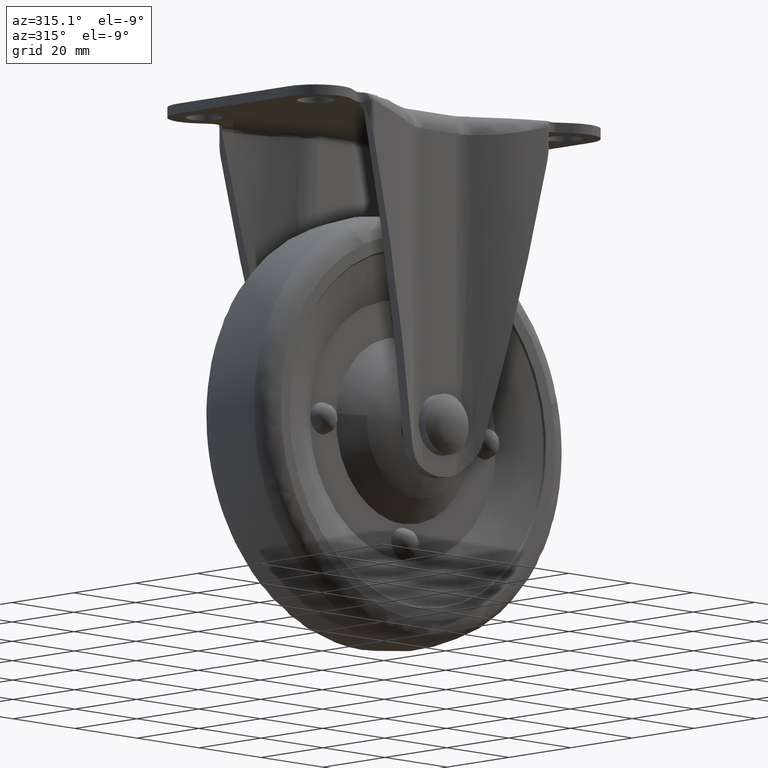
[diagram: clean part render]
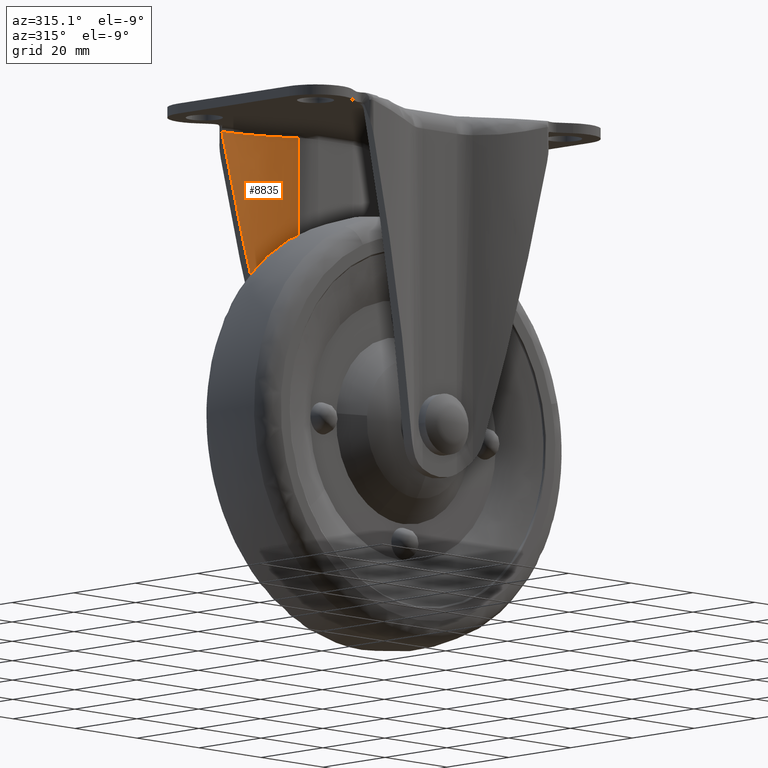
[diagram: same view with one face highlighted and labeled with its STEP entity id]
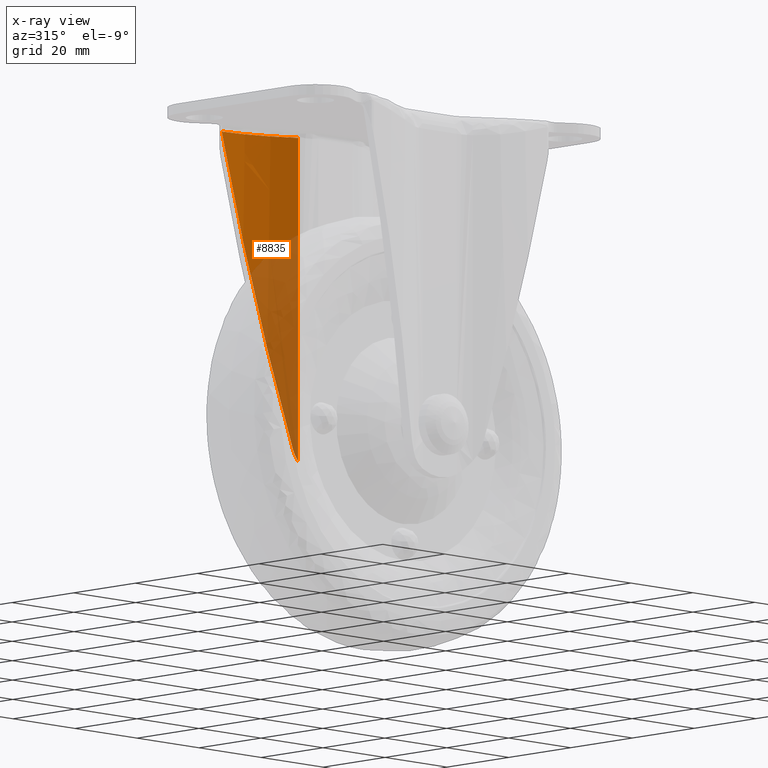
[diagram: x-ray of the same camera — body ghosted, the highlighted face saturated]
A machine part, auxiliary view. The second image highlights one B-rep face of the part: STEP entity #8835.
The next image is the same camera in x-ray: the body ghosted, the highlighted face saturated — about 43% of this face is hidden behind the body in this view.
In plain terms, the highlighted face is a freeform B-spline surface patch.
Its self-contained STEP definition (entity closure, byte-faithful):
#5723=CARTESIAN_POINT('',(-29.429437095891551,22.955056456212152,-3.799999999999880));
#5724=VERTEX_POINT('',#5723);
#5738=CARTESIAN_POINT('',(-10.618229972777939,17.182036952215249,-3.799999999999915));
#5739=VERTEX_POINT('',#5738);
#5740=CARTESIAN_POINT('',(-10.618229972777931,17.182036952215260,-3.799999999999915));
#5741=CARTESIAN_POINT('',(-19.287878117587347,22.466634874230799,-3.799999999999915));
#5742=CARTESIAN_POINT('',(-29.429437095891551,22.955056456212141,-3.799999999999915));
#5750=(BOUNDED_CURVE()B_SPLINE_CURVE(2,(#5740,#5741,#5742),.UNSPECIFIED.,.F.,.U.)CURVE()GEOMETRIC_REPRESENTATION_ITEM()QUASI_UNIFORM_CURVE()RATIONAL_B_SPLINE_CURVE((1.0,0.969000197598744,1.0))REPRESENTATION_ITEM(''));
#5751=EDGE_CURVE('',#5739,#5724,#5750,.T.);
#8202=CARTESIAN_POINT('',(-11.650774999999900,17.790308808874350,-75.873925999999898));
#8203=VERTEX_POINT('',#8202);
#8204=CARTESIAN_POINT('',(-11.650774999999900,17.790308808874350,-75.873925999999898));
#8205=CARTESIAN_POINT('',(-19.922922734288917,22.497218879804461,-42.338997418394904));
#8206=CARTESIAN_POINT('',(-29.429437095891529,22.955056456212141,-3.799999999999881));
#8214=(BOUNDED_CURVE()B_SPLINE_CURVE(2,(#8204,#8205,#8206),.UNSPECIFIED.,.F.,.U.)CURVE()GEOMETRIC_REPRESENTATION_ITEM()QUASI_UNIFORM_CURVE()RATIONAL_B_SPLINE_CURVE((1.0,0.972607923046872,1.0))REPRESENTATION_ITEM(''));
#8215=EDGE_CURVE('',#8203,#5724,#8214,.T.);
#8332=CARTESIAN_POINT('',(-10.618229972777939,17.182036952215249,-78.590455905265898));
#8333=VERTEX_POINT('',#8332);
#8355=CARTESIAN_POINT('',(-10.618229972777939,17.182036952215249,-78.590455905265898));
#8356=CARTESIAN_POINT('',(-10.842104623157351,17.318500104170880,-78.165239744570229));
#8357=CARTESIAN_POINT('',(-11.040690500056961,17.436559426713170,-77.726290501564023));
#8358=CARTESIAN_POINT('',(-11.385729080968989,17.638726636427720,-76.820974113432285));
#8359=CARTESIAN_POINT('',(-11.532201995572279,17.722839937837762,-76.354615862622126));
#8360=CARTESIAN_POINT('',(-11.650774999999900,17.790308808874400,-75.873925999999898));
#8361=B_SPLINE_CURVE_WITH_KNOTS('',3,(#8355,#8356,#8357,#8358,#8359,#8360),.UNSPECIFIED.,.F.,.U.,(4,2,4),(0.0,0.500000000000000,1.0),.UNSPECIFIED.);
#8362=EDGE_CURVE('',#8333,#8203,#8361,.T.);
#8806=CARTESIAN_POINT('',(-10.618229972777939,17.182036952215249,-78.590455905265898));
#8807=CARTESIAN_POINT('',(-10.618229972777939,17.182036952215249,-3.799999999999915));
#8808=QUASI_UNIFORM_CURVE('',1,(#8806,#8807),.UNSPECIFIED.,.F.,.U.);
#8809=EDGE_CURVE('',#8333,#5739,#8808,.T.);
#8815=CARTESIAN_POINT('',(-30.407155986862779,22.990112017964442,-80.460217302897547));
#8816=CARTESIAN_POINT('',(-30.407155986862779,22.990112017964442,-1.883494567427434));
#8817=CARTESIAN_POINT('',(-19.205029360035681,22.726197663770204,-80.460217302897547));
#8818=CARTESIAN_POINT('',(-19.205029360035681,22.726197663770204,-1.883494567427434));
#8819=CARTESIAN_POINT('',(-9.784225256663634,16.659424073491181,-80.460217302897533));
#8820=CARTESIAN_POINT('',(-9.784225256663634,16.659424073491181,-1.883494567427434));
#8828=(BOUNDED_SURFACE()B_SPLINE_SURFACE(1,2,((#8815,#8817,#8819),(#8816,#8818,#8820)),.UNSPECIFIED.,.F.,.F.,.U.)B_SPLINE_SURFACE_WITH_KNOTS((2,2),(3,3),(0.0,78.576722735470113),(0.0,21.983569438687692),.UNSPECIFIED.)GEOMETRIC_REPRESENTATION_ITEM()RATIONAL_B_SPLINE_SURFACE(((0.998715935379000,0.958378103010354,0.992483537143727),(0.998715935379000,0.958378103010354,0.992483537143727)))REPRESENTATION_ITEM('')SURFACE());
#8829=ORIENTED_EDGE('',*,*,#8809,.T.);
#8830=ORIENTED_EDGE('',*,*,#5751,.T.);
#8831=ORIENTED_EDGE('',*,*,#8215,.F.);
#8832=ORIENTED_EDGE('',*,*,#8362,.F.);
#8833=EDGE_LOOP('',(#8829,#8830,#8831,#8832));
#8834=FACE_OUTER_BOUND('',#8833,.T.);
#8835=ADVANCED_FACE('',(#8834),#8828,.F.);